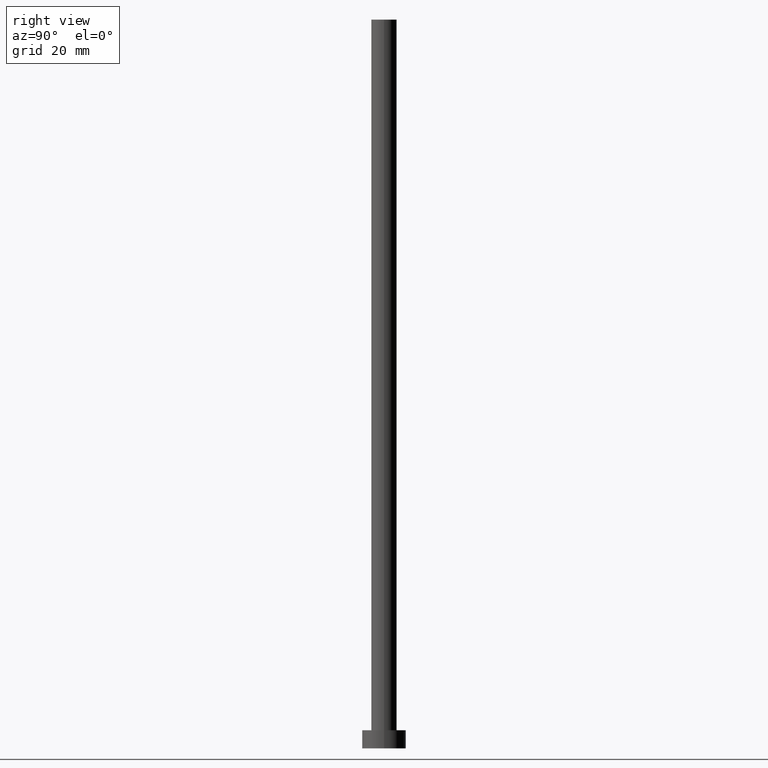
[diagram: clean part render]
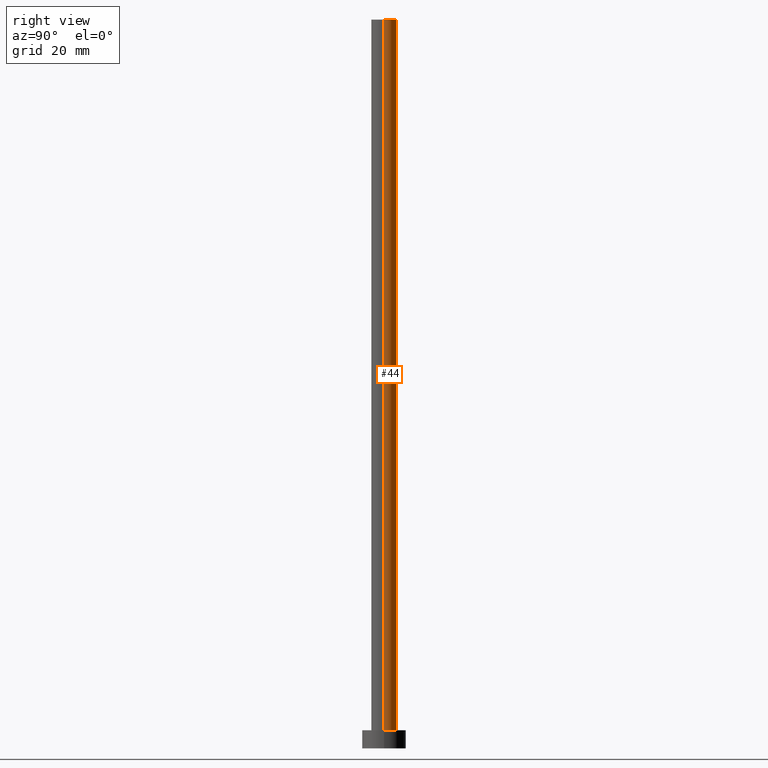
[diagram: same view with one face highlighted and labeled with its STEP entity id]
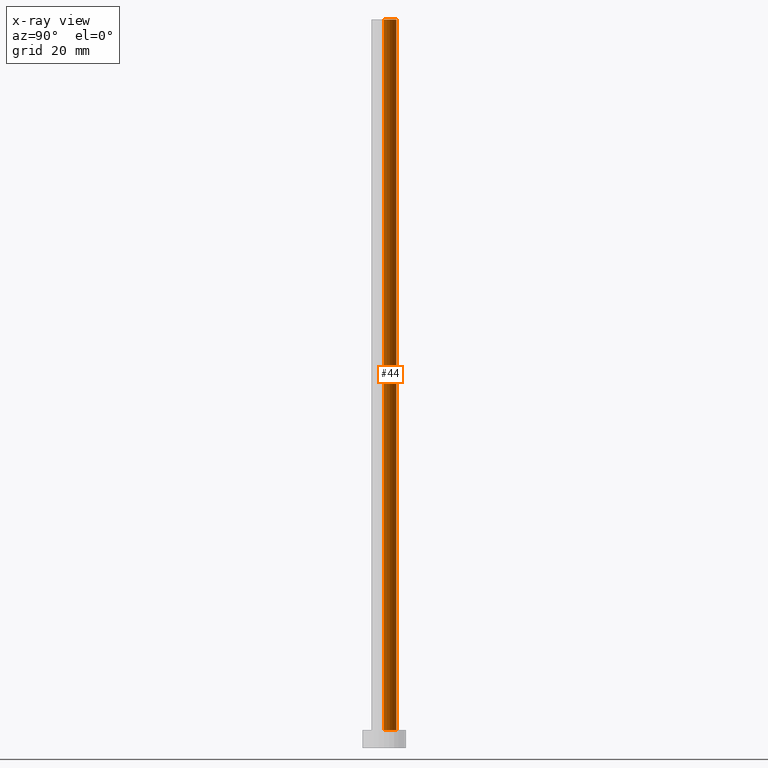
[diagram: x-ray of the same camera — body ghosted, the highlighted face saturated]
A machine part, right view. The second image highlights one B-rep face of the part: STEP entity #44.
The next image is the same camera in x-ray: the body ghosted, the highlighted face saturated — about 0% of this face is hidden behind the body in this view.
In plain terms, the highlighted cylindrical surface (edge-blend (fillet) strip) has radius 3.5 mm, axis along (-0, -0, -1).
Its self-contained STEP definition (entity closure, byte-faithful):
#6 = VECTOR ( 'NONE', #192, 1000.000000000000000 ) ;
#14 = CARTESIAN_POINT ( 'NONE',  ( -3.500000000000000000, 0.000000000000000000, 200.0000000000000000 ) ) ;
#19 = FACE_OUTER_BOUND ( 'NONE', #131, .T. ) ;
#26 = EDGE_CURVE ( 'NONE', #93, #106, #212, .T. ) ;
#44 = ADVANCED_FACE ( 'NONE', ( #19 ), #205, .T. ) ;
#51 = CARTESIAN_POINT ( 'NONE',  ( 3.500000000000000000, 4.286263797015736595E-16, 200.0000000000000000 ) ) ;
#53 = CIRCLE ( 'NONE', #119, 3.500000000000000000 ) ;
#55 = LINE ( 'NONE', #151, #101 ) ;
#56 = ORIENTED_EDGE ( 'NONE', *, *, #91, .F. ) ;
#74 = ORIENTED_EDGE ( 'NONE', *, *, #195, .F. ) ;
#91 = EDGE_CURVE ( 'NONE', #150, #247, #55, .T. ) ;
#93 = VERTEX_POINT ( 'NONE', #51 ) ;
#101 = VECTOR ( 'NONE', #168, 1000.000000000000000 ) ;
#106 = VERTEX_POINT ( 'NONE', #110 ) ;
#107 = AXIS2_PLACEMENT_3D ( 'NONE', #130, #137, #193 ) ;
#110 = CARTESIAN_POINT ( 'NONE',  ( 3.500000000000000000, 4.286263797015736595E-16, 5.000000000000000000 ) ) ;
#116 = ORIENTED_EDGE ( 'NONE', *, *, #207, .T. ) ;
#119 = AXIS2_PLACEMENT_3D ( 'NONE', #189, #196, #236 ) ;
#122 = AXIS2_PLACEMENT_3D ( 'NONE', #141, #143, #142 ) ;
#130 = CARTESIAN_POINT ( 'NONE',  ( 0.000000000000000000, 0.000000000000000000, 5.000000000000000000 ) ) ;
#131 = EDGE_LOOP ( 'NONE', ( #74, #249, #116, #56 ) ) ;
#137 = DIRECTION ( 'NONE',  ( 0.000000000000000000, 0.000000000000000000, 1.000000000000000000 ) ) ;
#141 = CARTESIAN_POINT ( 'NONE',  ( 0.000000000000000000, 0.000000000000000000, 200.0000000000000000 ) ) ;
#142 = DIRECTION ( 'NONE',  ( -1.000000000000000000, 0.000000000000000000, 0.000000000000000000 ) ) ;
#143 = DIRECTION ( 'NONE',  ( -0.000000000000000000, -0.000000000000000000, -1.000000000000000000 ) ) ;
#150 = VERTEX_POINT ( 'NONE', #14 ) ;
#151 = CARTESIAN_POINT ( 'NONE',  ( -3.500000000000000000, 0.000000000000000000, 200.0000000000000000 ) ) ;
#168 = DIRECTION ( 'NONE',  ( -0.000000000000000000, -0.000000000000000000, -1.000000000000000000 ) ) ;
#189 = CARTESIAN_POINT ( 'NONE',  ( 0.000000000000000000, 0.000000000000000000, 200.0000000000000000 ) ) ;
#191 = CIRCLE ( 'NONE', #107, 3.500000000000000000 ) ;
#192 = DIRECTION ( 'NONE',  ( -0.000000000000000000, -0.000000000000000000, -1.000000000000000000 ) ) ;
#193 = DIRECTION ( 'NONE',  ( 1.000000000000000000, 0.000000000000000000, 0.000000000000000000 ) ) ;
#195 = EDGE_CURVE ( 'NONE', #93, #150, #53, .T. ) ;
#196 = DIRECTION ( 'NONE',  ( 0.000000000000000000, 0.000000000000000000, 1.000000000000000000 ) ) ;
#205 = CYLINDRICAL_SURFACE ( 'NONE', #122, 3.500000000000000000 ) ;
#207 = EDGE_CURVE ( 'NONE', #106, #247, #191, .T. ) ;
#212 = LINE ( 'NONE', #253, #6 ) ;
#236 = DIRECTION ( 'NONE',  ( 1.000000000000000000, 0.000000000000000000, 0.000000000000000000 ) ) ;
#247 = VERTEX_POINT ( 'NONE', #248 ) ;
#248 = CARTESIAN_POINT ( 'NONE',  ( -3.500000000000000000, 0.000000000000000000, 5.000000000000000000 ) ) ;
#249 = ORIENTED_EDGE ( 'NONE', *, *, #26, .T. ) ;
#253 = CARTESIAN_POINT ( 'NONE',  ( 3.500000000000000000, 4.286263797015736595E-16, 200.0000000000000000 ) ) ;